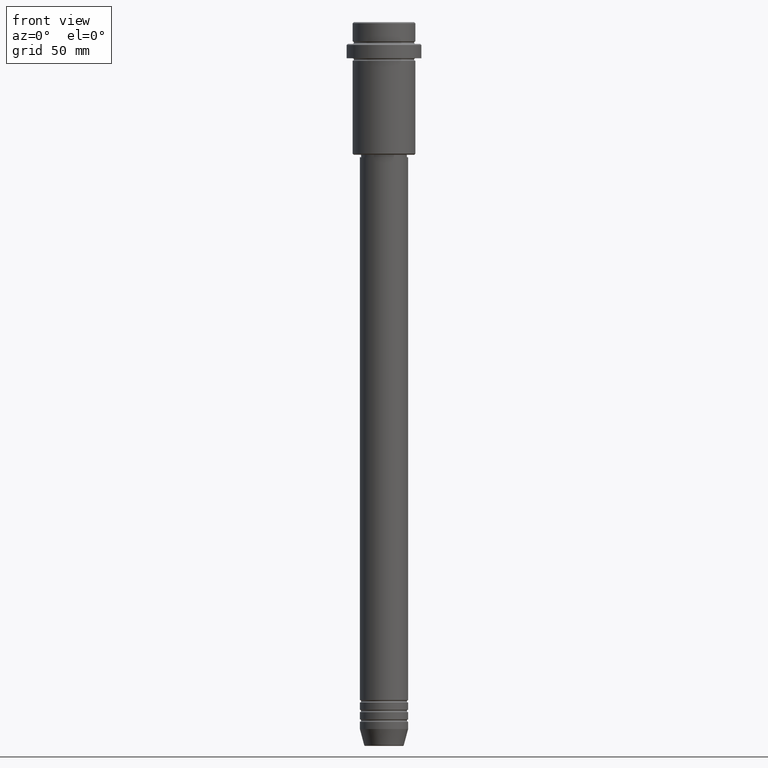
[diagram: clean part render]
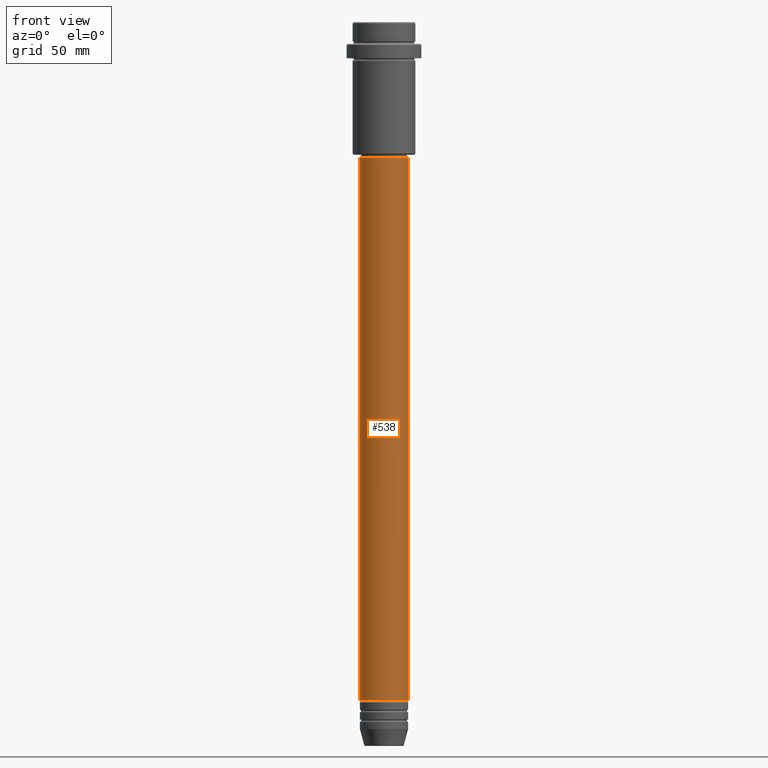
[diagram: same view with one face highlighted and labeled with its STEP entity id]
A machine part, front view. The second image highlights one B-rep face of the part: STEP entity #538.
In plain terms, the highlighted cylindrical surface (edge-blend (fillet) strip) has radius 10 mm, axis along (-0, -0, 1).
Its self-contained STEP definition (entity closure, byte-faithful):
#17 = EDGE_CURVE ( 'NONE', #190, #793, #665, .T. ) ;
#24 = DIRECTION ( 'NONE',  ( -0.000000000000000000, -0.000000000000000000, 1.000000000000000000 ) ) ;
#47 = FACE_OUTER_BOUND ( 'NONE', #380, .T. ) ;
#62 = CARTESIAN_POINT ( 'NONE',  ( 0.000000000000000000, 0.000000000000000000, 0.000000000000000000 ) ) ;
#148 = VERTEX_POINT ( 'NONE', #288 ) ;
#190 = VERTEX_POINT ( 'NONE', #754 ) ;
#219 = ORIENTED_EDGE ( 'NONE', *, *, #819, .F. ) ;
#223 = DIRECTION ( 'NONE',  ( -0.000000000000000000, -0.000000000000000000, 1.000000000000000000 ) ) ;
#230 = DIRECTION ( 'NONE',  ( -0.000000000000000000, -0.000000000000000000, 1.000000000000000000 ) ) ;
#288 = CARTESIAN_POINT ( 'NONE',  ( -10.00000000000000178, 1.224646799147353454E-15, -55.99999999999990763 ) ) ;
#327 = EDGE_CURVE ( 'NONE', #148, #403, #1057, .T. ) ;
#344 = VECTOR ( 'NONE', #1040, 1000.000000000000000 ) ;
#364 = CARTESIAN_POINT ( 'NONE',  ( 0.000000000000000000, 0.000000000000000000, -280.9999999999998863 ) ) ;
#380 = EDGE_LOOP ( 'NONE', ( #219, #632, #1179, #796 ) ) ;
#385 = CYLINDRICAL_SURFACE ( 'NONE', #854, 10.00000000000000178 ) ;
#403 = VERTEX_POINT ( 'NONE', #1019 ) ;
#434 = CARTESIAN_POINT ( 'NONE',  ( 10.00000000000000000, 0.000000000000000000, -280.9999999999998863 ) ) ;
#538 = ADVANCED_FACE ( 'NONE', ( #47 ), #385, .T. ) ;
#553 = VECTOR ( 'NONE', #24, 1000.000000000000000 ) ;
#600 = LINE ( 'NONE', #1142, #344 ) ;
#632 = ORIENTED_EDGE ( 'NONE', *, *, #17, .T. ) ;
#665 = CIRCLE ( 'NONE', #944, 10.00000000000000000 ) ;
#693 = AXIS2_PLACEMENT_3D ( 'NONE', #1096, #223, #894 ) ;
#706 = DIRECTION ( 'NONE',  ( 1.000000000000000000, 0.000000000000000000, 0.000000000000000000 ) ) ;
#754 = CARTESIAN_POINT ( 'NONE',  ( -10.00000000000000000, 1.224646799147353256E-15, -280.9999999999998863 ) ) ;
#793 = VERTEX_POINT ( 'NONE', #434 ) ;
#796 = ORIENTED_EDGE ( 'NONE', *, *, #327, .F. ) ;
#819 = EDGE_CURVE ( 'NONE', #190, #148, #881, .T. ) ;
#854 = AXIS2_PLACEMENT_3D ( 'NONE', #62, #1366, #706 ) ;
#881 = LINE ( 'NONE', #887, #553 ) ;
#887 = CARTESIAN_POINT ( 'NONE',  ( -10.00000000000000178, 1.224646799147353454E-15, 0.000000000000000000 ) ) ;
#894 = DIRECTION ( 'NONE',  ( 1.000000000000000000, 0.000000000000000000, 0.000000000000000000 ) ) ;
#944 = AXIS2_PLACEMENT_3D ( 'NONE', #364, #230, #1113 ) ;
#1008 = EDGE_CURVE ( 'NONE', #793, #403, #600, .T. ) ;
#1019 = CARTESIAN_POINT ( 'NONE',  ( 10.00000000000000178, 0.000000000000000000, -55.99999999999990763 ) ) ;
#1040 = DIRECTION ( 'NONE',  ( -0.000000000000000000, -0.000000000000000000, 1.000000000000000000 ) ) ;
#1057 = CIRCLE ( 'NONE', #693, 10.00000000000000178 ) ;
#1096 = CARTESIAN_POINT ( 'NONE',  ( 0.000000000000000000, 0.000000000000000000, -55.99999999999990763 ) ) ;
#1113 = DIRECTION ( 'NONE',  ( 1.000000000000000000, 0.000000000000000000, 0.000000000000000000 ) ) ;
#1142 = CARTESIAN_POINT ( 'NONE',  ( 10.00000000000000178, 0.000000000000000000, 0.000000000000000000 ) ) ;
#1179 = ORIENTED_EDGE ( 'NONE', *, *, #1008, .T. ) ;
#1366 = DIRECTION ( 'NONE',  ( -0.000000000000000000, -0.000000000000000000, 1.000000000000000000 ) ) ;